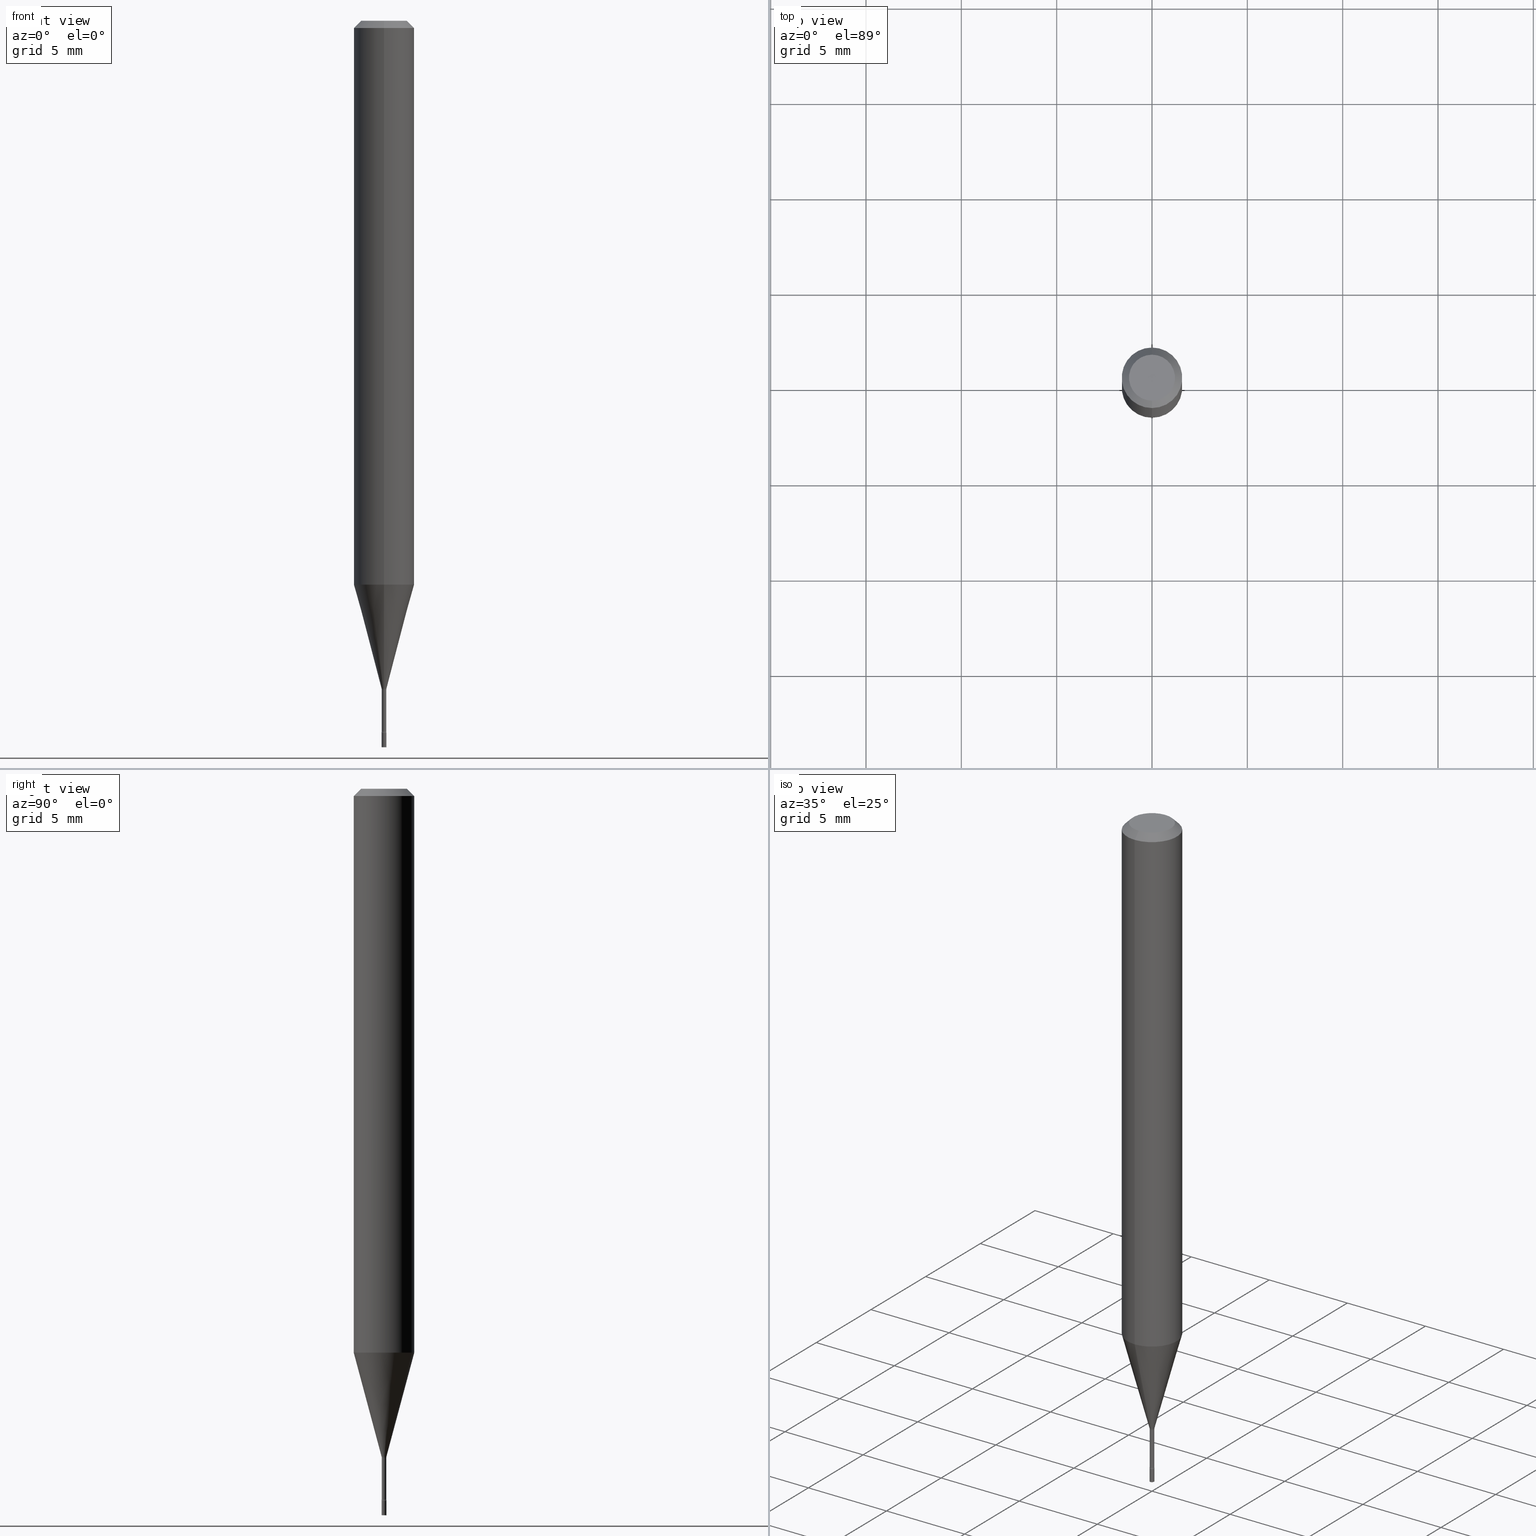
[diagram: canonical four-view strip — front | top / right | iso, engineering-drawing reading convention]
A machine part, canonical four-view strip (front | top / right | iso — engineering-drawing reading convention). The complete STEP part file that produces these views, byte-faithful:
ISO-10303-21;
HEADER;
FILE_DESCRIPTION (( 'STEP AP203' ),
    '1' );
FILE_NAME ('04294.STEP',
    '2024-03-08T22:55:13',
    ( '' ),
    ( '' ),
    'SwSTEP 2.0',
    'SolidWorks 2023',
    '' );
FILE_SCHEMA (( 'CONFIG_CONTROL_DESIGN' ));
ENDSEC;

DATA;
#1 = DIRECTION ( 'NONE',  ( -2.445468806185136597E-29, 3.491481338843145583E-15, 1.000000000000000000 ) ) ;
#2 = VERTEX_POINT ( 'NONE', #218 ) ;
#3 = FACE_OUTER_BOUND ( 'NONE', #76, .T. ) ;
#4 = VERTEX_POINT ( 'NONE', #19 ) ;
#5 = AXIS2_PLACEMENT_3D ( 'NONE', #143, #306, #470 ) ;
#6 = CARTESIAN_POINT ( 'NONE',  ( 3.665223815105752265E-31, -5.241488670295561103E-17, -0.01500000000000003067 ) ) ;
#7 = ORIENTED_EDGE ( 'NONE', *, *, #445, .F. ) ;
#8 = EDGE_CURVE ( 'NONE', #275, #40, #220, .T. ) ;
#9 = CARTESIAN_POINT ( 'NONE',  ( 3.491481338846726493E-17, 0.004999999999994865323, -1.470000000000000195 ) ) ;
#10 = VERTEX_POINT ( 'NONE', #223 ) ;
#11 = CARTESIAN_POINT ( 'NONE',  ( 2.844916092132503217E-29, -4.068399698648086919E-15, -1.164287463322519312 ) ) ;
#12 = ORIENTED_EDGE ( 'NONE', *, *, #237, .T. ) ;
#13 = CARTESIAN_POINT ( 'NONE',  ( 0.000000000000000000, 0.000000000000000000, 0.000000000000000000 ) ) ;
#14 = AXIS2_PLACEMENT_3D ( 'NONE', #513, #149, #476 ) ;
#15 = LOCAL_TIME ( 17, 55, 13.00000000000000000, #350 ) ;
#16 = EDGE_CURVE ( 'NONE', #45, #275, #93, .T. ) ;
#17 = CARTESIAN_POINT ( 'NONE',  ( 3.446132268440079019E-17, 0.004699999999994886220, -1.467015037688680357 ) ) ;
#18 = CARTESIAN_POINT ( 'NONE',  ( -4.364351673553916201E-16, -0.06250000000000000000, 2.183953612623145683E-16 ) ) ;
#19 = CARTESIAN_POINT ( 'NONE',  ( -3.638900483453789669E-17, -0.005211112605668734299, -1.378092501787273605 ) ) ;
#20 = DIRECTION ( 'NONE',  ( -6.982962677686266711E-15, -1.000000000000000000, 3.494325780197032699E-15 ) ) ;
#21 = COORDINATED_UNIVERSAL_TIME_OFFSET ( 5, 0, .BEHIND. ) ;
#22 = AXIS2_PLACEMENT_3D ( 'NONE', #362, #186, #311 ) ;
#23 = AXIS2_PLACEMENT_3D ( 'NONE', #167, #298, #372 ) ;
#24 = CARTESIAN_POINT ( 'NONE',  ( -3.281992458509167728E-17, -0.004700000000004827920, -1.381974787463811305 ) ) ;
#25 = ADVANCED_FACE ( 'NONE', ( #378 ), #262, .T. ) ;
#26 = FACE_OUTER_BOUND ( 'NONE', #371, .T. ) ;
#27 = APPROVAL_DATE_TIME ( #303, #315 ) ;
#28 = PLANE ( 'NONE',  #22 ) ;
#29 = CIRCLE ( 'NONE', #147, 0.004999999999999997502 ) ;
#30 = ORIENTED_EDGE ( 'NONE', *, *, #479, .F. ) ;
#31 = AXIS2_PLACEMENT_3D ( 'NONE', #468, #175, #386 ) ;
#32 = ADVANCED_FACE ( 'NONE', ( #425 ), #179, .F. ) ;
#33 = CARTESIAN_POINT ( 'NONE',  ( 3.668203209277704895E-29, -5.237222008264718177E-15, -1.500000000000000222 ) ) ;
#34 = ORIENTED_EDGE ( 'NONE', *, *, #445, .T. ) ;
#35 = SHAPE_DEFINITION_REPRESENTATION ( #383, #508 ) ;
#36 = DIRECTION ( 'NONE',  ( 1.000000000000000000, -6.982962677686336130E-15, 0.000000000000000000 ) ) ;
#37 = ORIENTED_EDGE ( 'NONE', *, *, #137, .T. ) ;
#38 = CARTESIAN_POINT ( 'NONE',  ( 4.440892098500912124E-16, 0.06249999999999995143, -0.01500000000000024751 ) ) ;
#39 = ADVANCED_FACE ( 'NONE', ( #26 ), #431, .F. ) ;
#40 = VERTEX_POINT ( 'NONE', #24 ) ;
#41 = AXIS2_PLACEMENT_3D ( 'NONE', #270, #230, #121 ) ;
#42 = APPROVAL_PERSON_ORGANIZATION ( #58, #498, #185 ) ;
#43 = LOCAL_TIME ( 17, 55, 13.00000000000000000, #507 ) ;
#44 = FACE_OUTER_BOUND ( 'NONE', #335, .T. ) ;
#45 = VERTEX_POINT ( 'NONE', #17 ) ;
#46 = DIRECTION ( 'NONE',  ( -1.000000000000000000, 6.982962677686265922E-15, -4.883557194083112340E-29 ) ) ;
#47 = ORIENTED_EDGE ( 'NONE', *, *, #459, .F. ) ;
#48 = EDGE_CURVE ( 'NONE', #122, #2, #487, .T. ) ;
#49 = DIRECTION ( 'NONE',  ( -6.982962677686266711E-15, -1.000000000000000000, 0.000000000000000000 ) ) ;
#50 = CARTESIAN_POINT ( 'NONE',  ( 4.364351673553919652E-16, 0.06249999999999995143, -0.01500000000000024751 ) ) ;
#51 = DIRECTION ( 'NONE',  ( -6.982962677686265133E-15, -1.000000000000000000, 0.000000000000000000 ) ) ;
#52 = CC_DESIGN_PERSON_AND_ORGANIZATION_ASSIGNMENT ( #446, #242, ( #448 ) ) ;
#53 = FACE_OUTER_BOUND ( 'NONE', #235, .T. ) ;
#54 = PLANE ( 'NONE',  #514 ) ;
#55 = APPLICATION_PROTOCOL_DEFINITION ( 'international standard', 'config_control_design', 1994, #408 ) ;
#56 = LINE ( 'NONE', #50, #520 ) ;
#57 = EDGE_CURVE ( 'NONE', #10, #442, #103, .T. ) ;
#58 = PERSON_AND_ORGANIZATION ( #72, #388 ) ;
#59 = CIRCLE ( 'NONE', #172, 0.005000000000000001839 ) ;
#60 = DIRECTION ( 'NONE',  ( -6.982962677686266711E-15, -1.000000000000000000, 0.000000000000000000 ) ) ;
#61 = PERSON_AND_ORGANIZATION ( #72, #388 ) ;
#62 = CC_DESIGN_PERSON_AND_ORGANIZATION_ASSIGNMENT ( #345, #64, ( #229 ) ) ;
#63 = DIRECTION ( 'NONE',  ( -6.982962677686265922E-15, -1.000000000000000000, 3.494325780197033093E-15 ) ) ;
#64 = PERSON_AND_ORGANIZATION_ROLE ( 'creator' ) ;
#65 = DIRECTION ( 'NONE',  ( 1.000000000000000000, -6.982962677686336130E-15, 0.000000000000000000 ) ) ;
#66 = DIRECTION ( 'NONE',  ( -6.982962677686265922E-15, -1.000000000000000000, 3.494325780197033093E-15 ) ) ;
#67 = AXIS2_PLACEMENT_3D ( 'NONE', #144, #337, #462 ) ;
#68 = APPROVAL_PERSON_ORGANIZATION ( #322, #348, #451 ) ;
#69 = COORDINATED_UNIVERSAL_TIME_OFFSET ( 5, 0, .BEHIND. ) ;
#70 = DESIGN_CONTEXT ( 'detailed design', #326, 'design' ) ;
#71 = ORIENTED_EDGE ( 'NONE', *, *, #384, .T. ) ;
#72 = PERSON ( 'UNSPECIFIED', 'UNSPECIFIED', 'UNSPECIFIED', ('UNSPECIFIED'), ('UNSPECIFIED'), ('UNSPECIFIED') ) ;
#73 = ORIENTED_EDGE ( 'NONE', *, *, #250, .T. ) ;
#74 = ADVANCED_FACE ( 'NONE', ( #53 ), #191, .T. ) ;
#75 = CARTESIAN_POINT ( 'NONE',  ( 1.399769189447756949E-16, 0.01969999999999489174, -1.467015037688680357 ) ) ;
#76 = EDGE_LOOP ( 'NONE', ( #168, #12, #83, #313 ) ) ;
#77 = VECTOR ( 'NONE', #198, 39.37007874015748143 ) ;
#78 = CALENDAR_DATE ( 2024, 8, 3 ) ;
#79 = DIRECTION ( 'NONE',  ( -2.445468806185136877E-29, 3.491481338843145188E-15, 1.000000000000000000 ) ) ;
#80 = ORIENTED_EDGE ( 'NONE', *, *, #290, .F. ) ;
#81 = APPROVAL_DATE_TIME ( #478, #348 ) ;
#82 = LINE ( 'NONE', #482, #504 ) ;
#83 = ORIENTED_EDGE ( 'NONE', *, *, #399, .F. ) ;
#84 = DIRECTION ( 'NONE',  ( -6.982962677686265922E-15, -1.000000000000000000, 0.000000000000000000 ) ) ;
#85 = ORIENTED_EDGE ( 'NONE', *, *, #16, .F. ) ;
#86 = AXIS2_PLACEMENT_3D ( 'NONE', #101, #265, #60 ) ;
#87 = CARTESIAN_POINT ( 'NONE',  ( 1.399769189447734763E-16, 0.01969999999999517276, -1.381974787463811305 ) ) ;
#88 = EDGE_LOOP ( 'NONE', ( #241, #201, #494, #500 ) ) ;
#89 = DIRECTION ( 'NONE',  ( -2.443482543403829974E-29, 3.494325780197033093E-15, 1.000000000000000000 ) ) ;
#90 = FACE_OUTER_BOUND ( 'NONE', #489, .T. ) ;
#91 = CYLINDRICAL_SURFACE ( 'NONE', #325, 0.004999999999999997502 ) ;
#92 = ORIENTED_EDGE ( 'NONE', *, *, #237, .F. ) ;
#93 = CIRCLE ( 'NONE', #396, 0.004700000000000012328 ) ;
#94 = DIRECTION ( 'NONE',  ( -2.443482543403829974E-29, 3.494325780197033093E-15, 1.000000000000000000 ) ) ;
#95 = CONICAL_SURFACE ( 'NONE', #14, 0.005211112605663917839, 0.2617993877991496299 ) ;
#96 = DIRECTION ( 'NONE',  ( -2.443482543403829974E-29, 3.494325780197033487E-15, 1.000000000000000000 ) ) ;
#97 = DIRECTION ( 'NONE',  ( -2.443482543403829974E-29, 3.494325780197033093E-15, 1.000000000000000000 ) ) ;
#98 = ADVANCED_FACE ( 'NONE', ( #90 ), #257, .F. ) ;
#99 = DIRECTION ( 'NONE',  ( -2.443482543403829974E-29, 3.494325780197033093E-15, 1.000000000000000000 ) ) ;
#100 = CARTESIAN_POINT ( 'NONE',  ( -4.287811248607203282E-16, -0.06250000000000005551, -0.01499999999999981209 ) ) ;
#101 = CARTESIAN_POINT ( 'NONE',  ( 3.591919338803630345E-29, -5.136658896889640106E-15, -1.470000000000000195 ) ) ;
#102 = CARTESIAN_POINT ( 'NONE',  ( 0.000000000000000000, 0.000000000000000000, 0.000000000000000000 ) ) ;
#103 = CIRCLE ( 'NONE', #67, 0.004999999999999997502 ) ;
#104 = DIRECTION ( 'NONE',  ( -6.982962677686266711E-15, -1.000000000000000000, 0.000000000000000000 ) ) ;
#105 = EDGE_CURVE ( 'NONE', #502, #40, #334, .T. ) ;
#106 = CALENDAR_DATE ( 2024, 8, 3 ) ;
#107 = CARTESIAN_POINT ( 'NONE',  ( -4.364351673553632704E-16, -0.06250000000000409395, -1.164287463322519089 ) ) ;
#108 = AXIS2_PLACEMENT_3D ( 'NONE', #471, #161, #104 ) ;
#109 = LOCAL_TIME ( 17, 55, 13.00000000000000000, #400 ) ;
#110 = ORIENTED_EDGE ( 'NONE', *, *, #392, .F. ) ;
#111 = EDGE_CURVE ( 'NONE', #363, #357, #59, .T. ) ;
#112 = ORIENTED_EDGE ( 'NONE', *, *, #305, .T. ) ;
#113 = DATE_AND_TIME ( #78, #213 ) ;
#114 = CARTESIAN_POINT ( 'NONE',  ( -3.281992458508968664E-17, -0.004700000000005138436, -1.467015037688680357 ) ) ;
#115 = EDGE_LOOP ( 'NONE', ( #323, #394, #34, #356 ) ) ;
#116 = CARTESIAN_POINT ( 'NONE',  ( 3.584558826531419241E-29, -5.126324140382401988E-15, -1.467015037688680357 ) ) ;
#117 = VECTOR ( 'NONE', #96, 39.37007874015748143 ) ;
#118 = ORIENTED_EDGE ( 'NONE', *, *, #338, .F. ) ;
#119 = AXIS2_PLACEMENT_3D ( 'NONE', #490, #253, #84 ) ;
#120 = EDGE_CURVE ( 'NONE', #122, #199, #56, .T. ) ;
#121 = DIRECTION ( 'NONE',  ( -6.982962677686265133E-15, -1.000000000000000000, 0.000000000000000000 ) ) ;
#122 = VERTEX_POINT ( 'NONE', #346 ) ;
#123 = DIRECTION ( 'NONE',  ( -6.982962677686265133E-15, -1.000000000000000000, 3.494325780197033093E-15 ) ) ;
#124 = CC_DESIGN_PERSON_AND_ORGANIZATION_ASSIGNMENT ( #314, #280, ( #515 ) ) ;
#125 = VERTEX_POINT ( 'NONE', #509 ) ;
#126 = DIRECTION ( 'NONE',  ( -6.982962677686266711E-15, -1.000000000000000000, 3.494325780197032699E-15 ) ) ;
#127 = ORIENTED_EDGE ( 'NONE', *, *, #105, .F. ) ;
#128 = CIRCLE ( 'NONE', #317, 0.004999999999999997502 ) ;
#129 = AXIS2_PLACEMENT_3D ( 'NONE', #102, #263, #268 ) ;
#130 = CARTESIAN_POINT ( 'NONE',  ( 7.032049533106805052E-46, -1.005625026357988639E-31, -2.877879996355934368E-17 ) ) ;
#131 = EDGE_CURVE ( 'NONE', #4, #484, #367, .T. ) ;
#132 = ORIENTED_EDGE ( 'NONE', *, *, #131, .F. ) ;
#133 = DIRECTION ( 'NONE',  ( 1.000000000000000000, -6.982962677686265922E-15, 4.876176775795935793E-29 ) ) ;
#134 = DIRECTION ( 'NONE',  ( -6.982962677686265922E-15, -1.000000000000000000, 0.000000000000000000 ) ) ;
#135 = DIRECTION ( 'NONE',  ( -2.445468806185136597E-29, 3.491481338843145583E-15, 1.000000000000000000 ) ) ;
#136 = CARTESIAN_POINT ( 'NONE',  ( 3.376595547336323602E-29, -4.829407693671720088E-15, -1.381974787463811305 ) ) ;
#137 = EDGE_CURVE ( 'NONE', #357, #363, #358, .T. ) ;
#138 = DIRECTION ( 'NONE',  ( 2.443482543403829974E-29, -3.494325780197033093E-15, -1.000000000000000000 ) ) ;
#139 = CIRCLE ( 'NONE', #273, 0.004999999999999997502 ) ;
#140 = AXIS2_PLACEMENT_3D ( 'NONE', #300, #46, #51 ) ;
#141 = DIRECTION ( 'NONE',  ( -2.443482543403829974E-29, 3.494325780197033093E-15, 1.000000000000000000 ) ) ;
#142 = DATE_AND_TIME ( #106, #203 ) ;
#143 = CARTESIAN_POINT ( 'NONE',  ( 3.367344971312914861E-29, -4.815504156491496449E-15, -1.378092501787273605 ) ) ;
#144 = CARTESIAN_POINT ( 'NONE',  ( 3.594839145092150820E-29, -5.132477568099424807E-15, -1.470000000000000195 ) ) ;
#145 = DIRECTION ( 'NONE',  ( -4.851104656540963486E-15, -0.7071067811865499042, -0.7071067811865450192 ) ) ;
#146 = CLOSED_SHELL ( 'NONE', ( #375, #344, #359, #266 ) ) ;
#147 = AXIS2_PLACEMENT_3D ( 'NONE', #404, #1, #36 ) ;
#148 = AXIS2_PLACEMENT_3D ( 'NONE', #9, #457, #417 ) ;
#149 = DIRECTION ( 'NONE',  ( -2.443482543403829974E-29, 3.494325780197033093E-15, 1.000000000000000000 ) ) ;
#150 = CARTESIAN_POINT ( 'NONE',  ( 3.339550858076058473E-17, 0.004699999999995169847, -1.381974787463811305 ) ) ;
#151 = CARTESIAN_POINT ( 'NONE',  ( -3.638900483453789669E-17, -0.005211112605668734299, -1.378092501787273605 ) ) ;
#152 = ORIENTED_EDGE ( 'NONE', *, *, #215, .F. ) ;
#153 = CALENDAR_DATE ( 2024, 8, 3 ) ;
#154 = EDGE_LOOP ( 'NONE', ( #316, #497, #196, #373 ) ) ;
#155 = EDGE_CURVE ( 'NONE', #125, #10, #188, .T. ) ;
#156 = AXIS2_PLACEMENT_3D ( 'NONE', #511, #427, #20 ) ;
#157 = CC_DESIGN_APPROVAL ( #348, ( #448 ) ) ;
#158 = VERTEX_POINT ( 'NONE', #282 ) ;
#159 = FACE_OUTER_BOUND ( 'NONE', #288, .T. ) ;
#160 = EDGE_LOOP ( 'NONE', ( #118, #450, #285, #390 ) ) ;
#161 = DIRECTION ( 'NONE',  ( -2.443482543403829974E-29, 3.494325780197033093E-15, 1.000000000000000000 ) ) ;
#162 = ORIENTED_EDGE ( 'NONE', *, *, #234, .T. ) ;
#163 = AXIS2_PLACEMENT_3D ( 'NONE', #463, #135, #495 ) ;
#164 = AXIS2_PLACEMENT_3D ( 'NONE', #13, #174, #336 ) ;
#165 = DIRECTION ( 'NONE',  ( -2.443482543403829974E-29, 3.494325780197033093E-15, 1.000000000000000000 ) ) ;
#166 = ORIENTED_EDGE ( 'NONE', *, *, #137, .F. ) ;
#167 = CARTESIAN_POINT ( 'NONE',  ( 2.844916092132503217E-29, -4.068399698648086919E-15, -1.164287463322519312 ) ) ;
#168 = ORIENTED_EDGE ( 'NONE', *, *, #410, .T. ) ;
#169 = CARTESIAN_POINT ( 'NONE',  ( 3.552713678804093402E-17, 0.004999999999994865323, -1.470000000000000195 ) ) ;
#170 = EDGE_CURVE ( 'NONE', #368, #442, #194, .T. ) ;
#171 = ORIENTED_EDGE ( 'NONE', *, *, #57, .T. ) ;
#172 = AXIS2_PLACEMENT_3D ( 'NONE', #304, #264, #428 ) ;
#173 = CIRCLE ( 'NONE', #274, 0.01500000000000001853 ) ;
#174 = DIRECTION ( 'NONE',  ( -2.443482543403829974E-29, 3.494325780197033093E-15, 1.000000000000000000 ) ) ;
#175 = DIRECTION ( 'NONE',  ( -2.443482543403829974E-29, 3.494325780197033093E-15, 1.000000000000000000 ) ) ;
#176 = CARTESIAN_POINT ( 'NONE',  ( 3.594839145092150820E-29, -5.132477568099424807E-15, -1.470000000000000195 ) ) ;
#177 = DIRECTION ( 'NONE',  ( 2.443482543403829974E-29, -3.494325780197033093E-15, -1.000000000000000000 ) ) ;
#178 = CARTESIAN_POINT ( 'NONE',  ( 3.376831268592040714E-29, -4.829070127417111793E-15, -1.381974787463811305 ) ) ;
#179 = TOROIDAL_SURFACE ( 'NONE', #221, 0.01970000000000000223, 0.01500000000000001679 ) ;
#180 = LINE ( 'NONE', #100, #252 ) ;
#181 = CIRCLE ( 'NONE', #140, 0.01500000000000001853 ) ;
#182 = DIRECTION ( 'NONE',  ( 4.937700262164547253E-15, 0.7071067811865450192, -0.7071067811865499042 ) ) ;
#183 = CARTESIAN_POINT ( 'NONE',  ( 3.665223815105752265E-31, -5.241488670295561103E-17, -0.01500000000000003067 ) ) ;
#184 = DIRECTION ( 'NONE',  ( -6.982962677686266711E-15, -1.000000000000000000, 3.494325780197033093E-15 ) ) ;
#185 = APPROVAL_ROLE ( '' ) ;
#186 = DIRECTION ( 'NONE',  ( 2.438088387897960049E-29, -3.491481338843145188E-15, -1.000000000000000000 ) ) ;
#187 = FACE_OUTER_BOUND ( 'NONE', #416, .T. ) ;
#188 = LINE ( 'NONE', #246, #77 ) ;
#189 = EDGE_CURVE ( 'NONE', #4, #190, #269, .T. ) ;
#190 = VERTEX_POINT ( 'NONE', #107 ) ;
#191 = CONICAL_SURFACE ( 'NONE', #302, 0.06250000000000000000, 0.7853981633974482790 ) ;
#192 = APPROVAL_PERSON_ORGANIZATION ( #341, #315, #503 ) ;
#193 = APPROVAL_STATUS ( 'not_yet_approved' ) ;
#194 = LINE ( 'NONE', #488, #308 ) ;
#195 = EDGE_CURVE ( 'NONE', #368, #125, #128, .T. ) ;
#196 = ORIENTED_EDGE ( 'NONE', *, *, #441, .F. ) ;
#197 = SECURITY_CLASSIFICATION_LEVEL ( 'unclassified' ) ;
#198 = DIRECTION ( 'NONE',  ( -2.445468806185136877E-29, 3.491481338843145188E-15, 1.000000000000000000 ) ) ;
#199 = VERTEX_POINT ( 'NONE', #38 ) ;
#200 = DIRECTION ( 'NONE',  ( -1.807323732225325801E-15, -0.2588190451025175753, 0.9659258262890690894 ) ) ;
#201 = ORIENTED_EDGE ( 'NONE', *, *, #155, .T. ) ;
#202 = AXIS2_PLACEMENT_3D ( 'NONE', #130, #165, #126 ) ;
#203 = LOCAL_TIME ( 17, 55, 13.00000000000000000, #21 ) ;
#204 = CARTESIAN_POINT ( 'NONE',  ( 0.004999999999999997502, -5.272136821653149826E-15, -1.500000000000000222 ) ) ;
#205 = ORIENTED_EDGE ( 'NONE', *, *, #410, .F. ) ;
#206 = EDGE_CURVE ( 'NONE', #125, #368, #139, .T. ) ;
#207 = FACE_OUTER_BOUND ( 'NONE', #455, .T. ) ;
#208 = EDGE_LOOP ( 'NONE', ( #365, #464, #443, #293 ) ) ;
#209 = DIRECTION ( 'NONE',  ( 1.000000000000000000, -7.105427357601001070E-15, 4.926350342902076101E-29 ) ) ;
#210 = MANIFOLD_SOLID_BREP ( 'Body-Move/Copy2[2]', #456 ) ;
#211 = CARTESIAN_POINT ( 'NONE',  ( 3.584625635503202420E-29, -5.126228466132278836E-15, -1.467015037688680357 ) ) ;
#212 = VECTOR ( 'NONE', #426, 39.37007874015748143 ) ;
#213 = LOCAL_TIME ( 17, 55, 13.00000000000000000, #69 ) ;
#214 = FACE_OUTER_BOUND ( 'NONE', #413, .T. ) ;
#215 = EDGE_CURVE ( 'NONE', #275, #363, #267, .T. ) ;
#216 = DIRECTION ( 'NONE',  ( 6.982962677686265922E-15, 1.000000000000000000, -3.483106191921935554E-15 ) ) ;
#217 = FACE_OUTER_BOUND ( 'NONE', #278, .T. ) ;
#218 = CARTESIAN_POINT ( 'NONE',  ( -3.773273898774340269E-16, -0.04749999999999999362, 1.372016745957997122E-16 ) ) ;
#219 = MECHANICAL_CONTEXT ( 'NONE', #408, 'mechanical' ) ;
#220 = LINE ( 'NONE', #299, #117 ) ;
#221 = AXIS2_PLACEMENT_3D ( 'NONE', #136, #141, #184 ) ;
#222 = APPROVAL_STATUS ( 'not_yet_approved' ) ;
#223 = CARTESIAN_POINT ( 'NONE',  ( -0.004999999999999997502, -5.149322651394067240E-15, -1.470000000000000195 ) ) ;
#224 = ADVANCED_FACE ( 'NONE', ( #3 ), #366, .T. ) ;
#225 = APPLICATION_PROTOCOL_DEFINITION ( 'international standard', 'config_control_design', 1994, #326 ) ;
#226 = DIRECTION ( 'NONE',  ( 1.000000000000000000, -6.982962677686336130E-15, 0.000000000000000000 ) ) ;
#227 = FACE_OUTER_BOUND ( 'NONE', #115, .T. ) ;
#228 = PRODUCT ( '04294', '04294', '', ( #219 ) ) ;
#229 = PRODUCT_DEFINITION ( 'UNKNOWN', '', #515, #70 ) ;
#230 = DIRECTION ( 'NONE',  ( -1.000000000000000000, 6.982962677686265922E-15, -4.883557194083112340E-29 ) ) ;
#231 = CARTESIAN_POINT ( 'NONE',  ( 0.000000000000000000, 0.000000000000000000, 0.000000000000000000 ) ) ;
#232 = CIRCLE ( 'NONE', #379, 0.06250000000000000000 ) ;
#233 = CIRCLE ( 'NONE', #23, 0.06250000000000000000 ) ;
#234 = EDGE_CURVE ( 'NONE', #199, #158, #496, .T. ) ;
#235 = EDGE_LOOP ( 'NONE', ( #491, #361, #319, #162 ) ) ;
#236 = EDGE_LOOP ( 'NONE', ( #47, #132, #276, #486 ) ) ;
#237 = EDGE_CURVE ( 'NONE', #45, #502, #82, .T. ) ;
#238 = DIRECTION ( 'NONE',  ( 1.000000000000000000, -7.105427357601001070E-15, 4.926350342902076101E-29 ) ) ;
#239 = TOROIDAL_SURFACE ( 'NONE', #283, 0.01970000000000000223, 0.01500000000000001679 ) ;
#240 = CC_DESIGN_APPROVAL ( #315, ( #229 ) ) ;
#241 = ORIENTED_EDGE ( 'NONE', *, *, #195, .T. ) ;
#242 = PERSON_AND_ORGANIZATION_ROLE ( 'classification_officer' ) ;
#243 = FACE_OUTER_BOUND ( 'NONE', #154, .T. ) ;
#244 = ORIENTED_EDGE ( 'NONE', *, *, #48, .T. ) ;
#245 = DIMENSIONAL_EXPONENTS ( 1.000000000000000000, 0.000000000000000000, 0.000000000000000000, 0.000000000000000000, 0.000000000000000000, 0.000000000000000000, 0.000000000000000000 ) ;
#246 = CARTESIAN_POINT ( 'NONE',  ( -0.004999999999999997502, 3.552713678800499154E-17, -2.459467545127451822E-31 ) ) ;
#247 = EDGE_LOOP ( 'NONE', ( #398, #171 ) ) ;
#248 = FACE_OUTER_BOUND ( 'NONE', #88, .T. ) ;
#249 = VECTOR ( 'NONE', #444, 39.37007874015748143 ) ;
#250 = EDGE_CURVE ( 'NONE', #484, #4, #480, .T. ) ;
#251 = ORIENTED_EDGE ( 'NONE', *, *, #441, .T. ) ;
#252 = VECTOR ( 'NONE', #145, 39.37007874015748854 ) ;
#253 = DIRECTION ( 'NONE',  ( -2.443482543403829974E-29, 3.494325780197033093E-15, 1.000000000000000000 ) ) ;
#254 = EDGE_LOOP ( 'NONE', ( #327, #460 ) ) ;
#255 = CC_DESIGN_DATE_AND_TIME_ASSIGNMENT ( #113, #407, ( #448 ) ) ;
#256 = CARTESIAN_POINT ( 'NONE',  ( 0.004999999999999997502, -5.167392381487856456E-15, -1.470000000000000195 ) ) ;
#257 = PLANE ( 'NONE',  #272 ) ;
#258 = CARTESIAN_POINT ( 'NONE',  ( 0.000000000000000000, 0.000000000000000000, 0.000000000000000000 ) ) ;
#259 = DIRECTION ( 'NONE',  ( -2.443482543403829974E-29, 3.494325780197033093E-15, 1.000000000000000000 ) ) ;
#260 = TOROIDAL_SURFACE ( 'NONE', #447, 0.01970000000000001958, 0.01500000000000000638 ) ;
#261 = CARTESIAN_POINT ( 'NONE',  ( 3.367344971312914861E-29, -4.815504156491496449E-15, -1.378092501787273605 ) ) ;
#262 = CYLINDRICAL_SURFACE ( 'NONE', #402, 0.06250000000000000000 ) ;
#263 = DIRECTION ( 'NONE',  ( 0.000000000000000000, 0.000000000000000000, 1.000000000000000000 ) ) ;
#264 = DIRECTION ( 'NONE',  ( -2.443482543403829974E-29, 3.494325780197033093E-15, 1.000000000000000000 ) ) ;
#265 = DIRECTION ( 'NONE',  ( -2.443482543403829974E-29, 3.494325780197033093E-15, 1.000000000000000000 ) ) ;
#266 = ADVANCED_FACE ( 'NONE', ( #393 ), #28, .T. ) ;
#267 = CIRCLE ( 'NONE', #41, 0.01500000000000000638 ) ;
#268 = DIRECTION ( 'NONE',  ( 1.000000000000000000, 0.000000000000000000, 0.000000000000000000 ) ) ;
#269 = LINE ( 'NONE', #151, #472 ) ;
#270 = CARTESIAN_POINT ( 'NONE',  ( -1.375643647503837156E-16, -0.01970000000000514395, -1.467015037688680357 ) ) ;
#271 = ORIENTED_EDGE ( 'NONE', *, *, #338, .T. ) ;
#272 = AXIS2_PLACEMENT_3D ( 'NONE', #342, #430, #381 ) ;
#273 = AXIS2_PLACEMENT_3D ( 'NONE', #33, #436, #65 ) ;
#274 = AXIS2_PLACEMENT_3D ( 'NONE', #87, #209, #492 ) ;
#275 = VERTEX_POINT ( 'NONE', #114 ) ;
#276 = ORIENTED_EDGE ( 'NONE', *, *, #419, .T. ) ;
#277 = CARTESIAN_POINT ( 'NONE',  ( 3.702718207185751166E-17, 0.005211112605659102247, -1.378092501787273605 ) ) ;
#278 = EDGE_LOOP ( 'NONE', ( #80, #73, #505, #110 ) ) ;
#279 = ADVANCED_FACE ( 'NONE', ( #395 ), #239, .F. ) ;
#280 = PERSON_AND_ORGANIZATION_ROLE ( 'design_supplier' ) ;
#281 = CC_DESIGN_PERSON_AND_ORGANIZATION_ASSIGNMENT ( #61, #438, ( #228 ) ) ;
#282 = CARTESIAN_POINT ( 'NONE',  ( -4.364351673553912750E-16, -0.06250000000000005551, -0.01499999999999981209 ) ) ;
#283 = AXIS2_PLACEMENT_3D ( 'NONE', #517, #286, #452 ) ;
#284 = CONICAL_SURFACE ( 'NONE', #343, 0.06250000000000000000, 0.7853981633974482790 ) ;
#285 = ORIENTED_EDGE ( 'NONE', *, *, #479, .T. ) ;
#286 = DIRECTION ( 'NONE',  ( -2.443482543403829974E-29, 3.494325780197033093E-15, 1.000000000000000000 ) ) ;
#287 = UNCERTAINTY_MEASURE_WITH_UNIT (LENGTH_MEASURE( 1.000000000000000082E-05 ), #477, 'distance_accuracy_value', 'NONE');
#288 = EDGE_LOOP ( 'NONE', ( #85, #112, #37, #152 ) ) ;
#289 = CARTESIAN_POINT ( 'NONE',  ( 4.440892098500625669E-16, 0.06250000000000000000, -2.183953612623145683E-16 ) ) ;
#290 = EDGE_CURVE ( 'NONE', #484, #406, #352, .T. ) ;
#291 = ORIENTED_EDGE ( 'NONE', *, *, #155, .F. ) ;
#292 = DIRECTION ( 'NONE',  ( -6.982962677686265922E-15, -1.000000000000000000, 0.000000000000000000 ) ) ;
#293 = ORIENTED_EDGE ( 'NONE', *, *, #419, .F. ) ;
#294 = CIRCLE ( 'NONE', #119, 0.004699999999999999317 ) ;
#295 = CARTESIAN_POINT ( 'NONE',  ( -3.491481338839543545E-17, -0.005000000000005140090, -1.470000000000000195 ) ) ;
#296 = ORIENTED_EDGE ( 'NONE', *, *, #215, .T. ) ;
#297 = ADVANCED_FACE ( 'NONE', ( #243 ), #95, .T. ) ;
#298 = DIRECTION ( 'NONE',  ( -2.443482543403829974E-29, 3.494325780197033093E-15, 1.000000000000000000 ) ) ;
#299 = CARTESIAN_POINT ( 'NONE',  ( -3.281992458512549353E-17, -0.004700000000000006256, 1.642333116692607654E-17 ) ) ;
#300 = CARTESIAN_POINT ( 'NONE',  ( -1.375643647503856878E-16, -0.01970000000000482823, -1.381974787463811305 ) ) ;
#301 = DIRECTION ( 'NONE',  ( -2.443482543403829974E-29, 3.494325780197033093E-15, 1.000000000000000000 ) ) ;
#302 = AXIS2_PLACEMENT_3D ( 'NONE', #467, #177, #216 ) ;
#303 = DATE_AND_TIME ( #385, #43 ) ;
#304 = CARTESIAN_POINT ( 'NONE',  ( 3.591919338803630345E-29, -5.136658896889640106E-15, -1.470000000000000195 ) ) ;
#305 = EDGE_CURVE ( 'NONE', #45, #357, #377, .T. ) ;
#306 = DIRECTION ( 'NONE',  ( -2.443482543403829974E-29, 3.494325780197033093E-15, 1.000000000000000000 ) ) ;
#307 = DIRECTION ( 'NONE',  ( -6.982962677686265922E-15, -1.000000000000000000, 3.483106191921935554E-15 ) ) ;
#308 = VECTOR ( 'NONE', #79, 39.37007874015748143 ) ;
#309 = DATE_AND_TIME ( #512, #15 ) ;
#310 = CC_DESIGN_SECURITY_CLASSIFICATION ( #448, ( #515 ) ) ;
#311 = DIRECTION ( 'NONE',  ( -1.000000000000000000, 6.982962677686265922E-15, -4.876176775795935793E-29 ) ) ;
#312 =( LENGTH_UNIT ( ) NAMED_UNIT ( * ) SI_UNIT ( $, .METRE. ) );
#313 = ORIENTED_EDGE ( 'NONE', *, *, #8, .F. ) ;
#314 = PERSON_AND_ORGANIZATION ( #72, #388 ) ;
#315 = APPROVAL ( #391, 'UNSPECIFIED' ) ;
#316 = ORIENTED_EDGE ( 'NONE', *, *, #131, .T. ) ;
#317 = AXIS2_PLACEMENT_3D ( 'NONE', #434, #320, #226 ) ;
#318 = AXIS2_PLACEMENT_3D ( 'NONE', #331, #420, #422 ) ;
#319 = ORIENTED_EDGE ( 'NONE', *, *, #120, .T. ) ;
#320 = DIRECTION ( 'NONE',  ( -2.445468806185136597E-29, 3.491481338843145583E-15, 1.000000000000000000 ) ) ;
#321 = EDGE_CURVE ( 'NONE', #442, #10, #29, .T. ) ;
#322 = PERSON_AND_ORGANIZATION ( #72, #388 ) ;
#323 = ORIENTED_EDGE ( 'NONE', *, *, #384, .F. ) ;
#324 = DIRECTION ( 'NONE',  ( -2.443482543403829974E-29, 3.494325780197033093E-15, 1.000000000000000000 ) ) ;
#325 = AXIS2_PLACEMENT_3D ( 'NONE', #258, #501, #382 ) ;
#326 = APPLICATION_CONTEXT ( 'configuration controlled 3d designs of mechanical parts and assemblies' ) ;
#327 = ORIENTED_EDGE ( 'NONE', *, *, #195, .F. ) ;
#328 = ADVANCED_FACE ( 'NONE', ( #159 ), #260, .F. ) ;
#329 = DIRECTION ( 'NONE',  ( -6.982962677686265922E-15, -1.000000000000000000, 4.370956789862821150E-15 ) ) ;
#330 = ORIENTED_EDGE ( 'NONE', *, *, #8, .T. ) ;
#331 = CARTESIAN_POINT ( 'NONE',  ( 3.665223815105752265E-31, -5.241488670295561103E-17, -0.01500000000000003067 ) ) ;
#332 = ORIENTED_EDGE ( 'NONE', *, *, #111, .T. ) ;
#333 = CYLINDRICAL_SURFACE ( 'NONE', #163, 0.004999999999999997502 ) ;
#334 = CIRCLE ( 'NONE', #387, 0.004699999999999999317 ) ;
#335 = EDGE_LOOP ( 'NONE', ( #291, #418, #519, #453 ) ) ;
#336 = DIRECTION ( 'NONE',  ( -6.982962677686265922E-15, -1.000000000000000000, 3.494325780197033093E-15 ) ) ;
#337 = DIRECTION ( 'NONE',  ( -2.445468806185136597E-29, 3.491481338843145583E-15, 1.000000000000000000 ) ) ;
#338 = EDGE_CURVE ( 'NONE', #406, #199, #485, .T. ) ;
#339 = DIRECTION ( 'NONE',  ( -2.443482543403829974E-29, 3.494325780197033487E-15, 1.000000000000000000 ) ) ;
#340 = DIRECTION ( 'NONE',  ( -6.982962677686265922E-15, -1.000000000000000000, 0.000000000000000000 ) ) ;
#341 = PERSON_AND_ORGANIZATION ( #72, #388 ) ;
#342 = CARTESIAN_POINT ( 'NONE',  ( 3.316907271900976096E-16, 0.04749999999999999362, -1.803698745411387246E-16 ) ) ;
#343 = AXIS2_PLACEMENT_3D ( 'NONE', #183, #138, #516 ) ;
#344 = ADVANCED_FACE ( 'NONE', ( #465 ), #54, .T. ) ;
#345 = PERSON_AND_ORGANIZATION ( #72, #388 ) ;
#346 = CARTESIAN_POINT ( 'NONE',  ( 3.840629472727447874E-16, 0.04749999999999999362, -1.947592745229183872E-16 ) ) ;
#347 =( NAMED_UNIT ( * ) PLANE_ANGLE_UNIT ( ) SI_UNIT ( $, .RADIAN. ) );
#348 = APPROVAL ( #193, 'UNSPECIFIED' ) ;
#349 = DIRECTION ( 'NONE',  ( -6.982962677686265922E-15, -1.000000000000000000, 3.494325780197033093E-15 ) ) ;
#350 = COORDINATED_UNIVERSAL_TIME_OFFSET ( 5, 0, .BEHIND. ) ;
#351 = ADVANCED_FACE ( 'NONE', ( #217 ), #415, .T. ) ;
#352 = LINE ( 'NONE', #277, #249 ) ;
#353 = AXIS2_PLACEMENT_3D ( 'NONE', #261, #94, #49 ) ;
#354 = CYLINDRICAL_SURFACE ( 'NONE', #474, 0.06250000000000000000 ) ;
#355 = DIRECTION ( 'NONE',  ( -2.443482543403829974E-29, 3.494325780197033093E-15, 1.000000000000000000 ) ) ;
#356 = ORIENTED_EDGE ( 'NONE', *, *, #120, .F. ) ;
#357 = VERTEX_POINT ( 'NONE', #169 ) ;
#358 = CIRCLE ( 'NONE', #86, 0.005000000000000001839 ) ;
#359 = ADVANCED_FACE ( 'NONE', ( #44 ), #91, .T. ) ;
#360 =( GEOMETRIC_REPRESENTATION_CONTEXT ( 3 ) GLOBAL_UNCERTAINTY_ASSIGNED_CONTEXT ( ( #287 ) ) GLOBAL_UNIT_ASSIGNED_CONTEXT ( ( #477, #347, #429 ) ) REPRESENTATION_CONTEXT ( 'NONE', 'WORKASPACE' ) );
#361 = ORIENTED_EDGE ( 'NONE', *, *, #48, .F. ) ;
#362 = CARTESIAN_POINT ( 'NONE',  ( 3.491481338846799833E-17, 0.004999999999994760372, -1.500000000000000222 ) ) ;
#363 = VERTEX_POINT ( 'NONE', #295 ) ;
#364 = DIRECTION ( 'NONE',  ( -2.443482543403829974E-29, 3.494325780197033093E-15, 1.000000000000000000 ) ) ;
#365 = ORIENTED_EDGE ( 'NONE', *, *, #250, .F. ) ;
#366 = CYLINDRICAL_SURFACE ( 'NONE', #466, 0.004700000000000006256 ) ;
#367 = CIRCLE ( 'NONE', #5, 0.005211112605663917839 ) ;
#368 = VERTEX_POINT ( 'NONE', #204 ) ;
#369 = CC_DESIGN_DATE_AND_TIME_ASSIGNMENT ( #142, #469, ( #229 ) ) ;
#370 = PLANE ( 'NONE',  #148 ) ;
#371 = EDGE_LOOP ( 'NONE', ( #437, #205, #296, #332 ) ) ;
#372 = DIRECTION ( 'NONE',  ( -6.982962677686265922E-15, -1.000000000000000000, 4.370956789862821150E-15 ) ) ;
#373 = ORIENTED_EDGE ( 'NONE', *, *, #189, .F. ) ;
#374 = CYLINDRICAL_SURFACE ( 'NONE', #164, 0.004700000000000006256 ) ;
#375 = ADVANCED_FACE ( 'NONE', ( #248 ), #333, .T. ) ;
#377 = CIRCLE ( 'NONE', #424, 0.01500000000000000638 ) ;
#376 = PRODUCT_RELATED_PRODUCT_CATEGORY ( 'detail', '', ( #228 ) ) ;
#378 = FACE_OUTER_BOUND ( 'NONE', #160, .T. ) ;
#379 = AXIS2_PLACEMENT_3D ( 'NONE', #11, #499, #329 ) ;
#380 = LINE ( 'NONE', #18, #481 ) ;
#381 = DIRECTION ( 'NONE',  ( 6.982962677686265922E-15, 1.000000000000000000, -3.494325780197033487E-15 ) ) ;
#382 = DIRECTION ( 'NONE',  ( 1.000000000000000000, -6.982962677686266711E-15, 4.876176775795936914E-29 ) ) ;
#383 = PRODUCT_DEFINITION_SHAPE ( 'NONE', 'NONE',  #229 ) ;
#384 = EDGE_CURVE ( 'NONE', #2, #122, #397, .T. ) ;
#385 = CALENDAR_DATE ( 2024, 8, 3 ) ;
#386 = DIRECTION ( 'NONE',  ( -6.982962677686265133E-15, -1.000000000000000000, 3.494325780197033093E-15 ) ) ;
#387 = AXIS2_PLACEMENT_3D ( 'NONE', #178, #99, #340 ) ;
#388 = ORGANIZATION ( 'UNSPECIFIED', 'UNSPECIFIED', '' ) ;
#389 = CARTESIAN_POINT ( 'NONE',  ( 2.405581959609744668E-16, 0.005211112605659102247, -1.378092501787273605 ) ) ;
#390 = ORIENTED_EDGE ( 'NONE', *, *, #234, .F. ) ;
#391 = APPROVAL_STATUS ( 'not_yet_approved' ) ;
#392 = EDGE_CURVE ( 'NONE', #406, #190, #232, .T. ) ;
#393 = FACE_OUTER_BOUND ( 'NONE', #254, .T. ) ;
#394 = ORIENTED_EDGE ( 'NONE', *, *, #510, .T. ) ;
#395 = FACE_OUTER_BOUND ( 'NONE', #208, .T. ) ;
#396 = AXIS2_PLACEMENT_3D ( 'NONE', #211, #301, #134 ) ;
#397 = CIRCLE ( 'NONE', #202, 0.04749999999999999362 ) ;
#398 = ORIENTED_EDGE ( 'NONE', *, *, #321, .T. ) ;
#399 = EDGE_CURVE ( 'NONE', #40, #502, #294, .T. ) ;
#400 = COORDINATED_UNIVERSAL_TIME_OFFSET ( 5, 0, .BEHIND. ) ;
#401 = ORIENTED_EDGE ( 'NONE', *, *, #111, .F. ) ;
#402 = AXIS2_PLACEMENT_3D ( 'NONE', #421, #259, #349 ) ;
#403 = CIRCLE ( 'NONE', #432, 0.004700000000000012328 ) ;
#404 = CARTESIAN_POINT ( 'NONE',  ( 3.594839145092150820E-29, -5.132477568099424807E-15, -1.470000000000000195 ) ) ;
#405 = MANIFOLD_SOLID_BREP ( 'Body-Move/Copy2[1]', #146 ) ;
#406 = VERTEX_POINT ( 'NONE', #461 ) ;
#407 = DATE_TIME_ROLE ( 'classification_date' ) ;
#408 = APPLICATION_CONTEXT ( 'configuration controlled 3d designs of mechanical parts and assemblies' ) ;
#409 = DIRECTION ( 'NONE',  ( 7.105427357601000281E-15, 1.000000000000000000, 0.000000000000000000 ) ) ;
#410 = EDGE_CURVE ( 'NONE', #275, #45, #403, .T. ) ;
#411 = ORIENTED_EDGE ( 'NONE', *, *, #16, .T. ) ;
#412 = CARTESIAN_POINT ( 'NONE',  ( 0.000000000000000000, 0.000000000000000000, 0.000000000000000000 ) ) ;
#413 = EDGE_LOOP ( 'NONE', ( #401, #166 ) ) ;
#414 = CARTESIAN_POINT ( 'NONE',  ( 3.584625635503202420E-29, -5.126228466132278836E-15, -1.467015037688680357 ) ) ;
#415 = CONICAL_SURFACE ( 'NONE', #353, 0.005211112605663917839, 0.2617993877991496299 ) ;
#416 = EDGE_LOOP ( 'NONE', ( #251, #271, #7, #30 ) ) ;
#417 = DIRECTION ( 'NONE',  ( -6.982962677686265922E-15, -1.000000000000000000, 3.494325780197033487E-15 ) ) ;
#418 = ORIENTED_EDGE ( 'NONE', *, *, #206, .T. ) ;
#419 = EDGE_CURVE ( 'NONE', #4, #40, #181, .T. ) ;
#420 = DIRECTION ( 'NONE',  ( -2.443482543403829974E-29, 3.494325780197033093E-15, 1.000000000000000000 ) ) ;
#421 = CARTESIAN_POINT ( 'NONE',  ( 0.000000000000000000, 0.000000000000000000, 0.000000000000000000 ) ) ;
#422 = DIRECTION ( 'NONE',  ( -6.982962677686265922E-15, -1.000000000000000000, 3.483106191921935554E-15 ) ) ;
#423 = ADVANCED_FACE ( 'NONE', ( #214 ), #370, .F. ) ;
#424 = AXIS2_PLACEMENT_3D ( 'NONE', #75, #238, #409 ) ;
#425 = FACE_OUTER_BOUND ( 'NONE', #236, .T. ) ;
#426 = DIRECTION ( 'NONE',  ( -2.443482543403829974E-29, 3.494325780197033487E-15, 1.000000000000000000 ) ) ;
#427 = DIRECTION ( 'NONE',  ( -2.443482543403829974E-29, 3.494325780197033093E-15, 1.000000000000000000 ) ) ;
#428 = DIRECTION ( 'NONE',  ( -6.982962677686266711E-15, -1.000000000000000000, 0.000000000000000000 ) ) ;
#429 =( NAMED_UNIT ( * ) SI_UNIT ( $, .STERADIAN. ) SOLID_ANGLE_UNIT ( ) );
#430 = DIRECTION ( 'NONE',  ( 2.443482543403829694E-29, -3.494325780197033487E-15, -1.000000000000000000 ) ) ;
#431 = TOROIDAL_SURFACE ( 'NONE', #31, 0.01970000000000001958, 0.01500000000000000638 ) ;
#432 = AXIS2_PLACEMENT_3D ( 'NONE', #414, #89, #292 ) ;
#433 = LENGTH_MEASURE_WITH_UNIT ( LENGTH_MEASURE( 0.02539999999999999897 ), #312 );
#434 = CARTESIAN_POINT ( 'NONE',  ( 3.668203209277704895E-29, -5.237222008264718177E-15, -1.500000000000000222 ) ) ;
#435 = CC_DESIGN_PERSON_AND_ORGANIZATION_ASSIGNMENT ( #518, #440, ( #515 ) ) ;
#436 = DIRECTION ( 'NONE',  ( -2.445468806185136597E-29, 3.491481338843145583E-15, 1.000000000000000000 ) ) ;
#437 = ORIENTED_EDGE ( 'NONE', *, *, #305, .F. ) ;
#438 = PERSON_AND_ORGANIZATION_ROLE ( 'design_owner' ) ;
#439 = AXIS2_PLACEMENT_3D ( 'NONE', #6, #364, #307 ) ;
#440 = PERSON_AND_ORGANIZATION_ROLE ( 'creator' ) ;
#441 = EDGE_CURVE ( 'NONE', #190, #406, #233, .T. ) ;
#442 = VERTEX_POINT ( 'NONE', #256 ) ;
#443 = ORIENTED_EDGE ( 'NONE', *, *, #105, .T. ) ;
#444 = DIRECTION ( 'NONE',  ( 1.839019923739595977E-15, 0.2588190451025243477, 0.9659258262890673130 ) ) ;
#445 = EDGE_CURVE ( 'NONE', #158, #199, #506, .T. ) ;
#446 = PERSON_AND_ORGANIZATION ( #72, #388 ) ;
#447 = AXIS2_PLACEMENT_3D ( 'NONE', #116, #324, #123 ) ;
#448 = SECURITY_CLASSIFICATION ( '', '', #197 ) ;
#449 = DIRECTION ( 'NONE',  ( -2.443482543403829974E-29, 3.494325780197033487E-15, 1.000000000000000000 ) ) ;
#450 = ORIENTED_EDGE ( 'NONE', *, *, #392, .T. ) ;
#451 = APPROVAL_ROLE ( '' ) ;
#452 = DIRECTION ( 'NONE',  ( -6.982962677686266711E-15, -1.000000000000000000, 3.494325780197033093E-15 ) ) ;
#453 = ORIENTED_EDGE ( 'NONE', *, *, #57, .F. ) ;
#454 = DIRECTION ( 'NONE',  ( -2.438088387897960049E-29, 3.491481338843145188E-15, 1.000000000000000000 ) ) ;
#455 = EDGE_LOOP ( 'NONE', ( #92, #411, #330, #127 ) ) ;
#456 = CLOSED_SHELL ( 'NONE', ( #279, #224, #328, #483, #493, #297, #351, #25, #74, #98, #423, #39, #473, #32 ) ) ;
#457 = DIRECTION ( 'NONE',  ( -2.443482543403829694E-29, 3.494325780197033487E-15, 1.000000000000000000 ) ) ;
#458 = CC_DESIGN_APPROVAL ( #498, ( #515 ) ) ;
#459 = EDGE_CURVE ( 'NONE', #484, #502, #173, .T. ) ;
#460 = ORIENTED_EDGE ( 'NONE', *, *, #206, .F. ) ;
#461 = CARTESIAN_POINT ( 'NONE',  ( 4.440892098500909166E-16, 0.06249999999999592687, -1.164287463322519756 ) ) ;
#462 = DIRECTION ( 'NONE',  ( 1.000000000000000000, -6.982962677686336130E-15, 0.000000000000000000 ) ) ;
#463 = CARTESIAN_POINT ( 'NONE',  ( 0.000000000000000000, 0.000000000000000000, 0.000000000000000000 ) ) ;
#464 = ORIENTED_EDGE ( 'NONE', *, *, #459, .T. ) ;
#465 = FACE_OUTER_BOUND ( 'NONE', #247, .T. ) ;
#466 = AXIS2_PLACEMENT_3D ( 'NONE', #412, #355, #63 ) ;
#467 = CARTESIAN_POINT ( 'NONE',  ( 3.665223815105752265E-31, -5.241488670295561103E-17, -0.01500000000000003067 ) ) ;
#468 = CARTESIAN_POINT ( 'NONE',  ( 3.584558826531419241E-29, -5.126324140382401988E-15, -1.467015037688680357 ) ) ;
#469 = DATE_TIME_ROLE ( 'creation_date' ) ;
#470 = DIRECTION ( 'NONE',  ( -6.982962677686266711E-15, -1.000000000000000000, 0.000000000000000000 ) ) ;
#471 = CARTESIAN_POINT ( 'NONE',  ( 3.367344971312914861E-29, -4.815504156491496449E-15, -1.378092501787273605 ) ) ;
#472 = VECTOR ( 'NONE', #200, 39.37007874015748854 ) ;
#473 = ADVANCED_FACE ( 'NONE', ( #207 ), #374, .T. ) ;
#474 = AXIS2_PLACEMENT_3D ( 'NONE', #231, #97, #66 ) ;
#475 = APPROVAL_DATE_TIME ( #309, #498 ) ;
#476 = DIRECTION ( 'NONE',  ( -6.982962677686266711E-15, -1.000000000000000000, 0.000000000000000000 ) ) ;
#477 =( CONVERSION_BASED_UNIT ( 'INCH', #433 ) LENGTH_UNIT ( ) NAMED_UNIT ( #245 ) );
#478 = DATE_AND_TIME ( #153, #109 ) ;
#479 = EDGE_CURVE ( 'NONE', #190, #158, #380, .T. ) ;
#480 = CIRCLE ( 'NONE', #108, 0.005211112605663917839 ) ;
#481 = VECTOR ( 'NONE', #339, 39.37007874015748143 ) ;
#482 = CARTESIAN_POINT ( 'NONE',  ( 3.339550858072474703E-17, 0.004700000000000006256, -1.642333116692607654E-17 ) ) ;
#483 = ADVANCED_FACE ( 'NONE', ( #227 ), #284, .T. ) ;
#484 = VERTEX_POINT ( 'NONE', #389 ) ;
#485 = LINE ( 'NONE', #289, #212 ) ;
#486 = ORIENTED_EDGE ( 'NONE', *, *, #399, .T. ) ;
#487 = CIRCLE ( 'NONE', #156, 0.04749999999999999362 ) ;
#488 = CARTESIAN_POINT ( 'NONE',  ( 0.004999999999999997502, -3.491481338843131630E-17, 2.438088387897967108E-31 ) ) ;
#489 = EDGE_LOOP ( 'NONE', ( #244, #71 ) ) ;
#490 = CARTESIAN_POINT ( 'NONE',  ( 3.376831268592040714E-29, -4.829070127417111793E-15, -1.381974787463811305 ) ) ;
#491 = ORIENTED_EDGE ( 'NONE', *, *, #510, .F. ) ;
#492 = DIRECTION ( 'NONE',  ( 7.105427357601000281E-15, 1.000000000000000000, 0.000000000000000000 ) ) ;
#493 = ADVANCED_FACE ( 'NONE', ( #187 ), #354, .T. ) ;
#494 = ORIENTED_EDGE ( 'NONE', *, *, #321, .F. ) ;
#495 = DIRECTION ( 'NONE',  ( 1.000000000000000000, -6.982962677686266711E-15, 4.876176775795936914E-29 ) ) ;
#496 = CIRCLE ( 'NONE', #439, 0.06250000000000000000 ) ;
#497 = ORIENTED_EDGE ( 'NONE', *, *, #290, .T. ) ;
#498 = APPROVAL ( #222, 'UNSPECIFIED' ) ;
#499 = DIRECTION ( 'NONE',  ( -2.443482543403829974E-29, 3.494325780197033093E-15, 1.000000000000000000 ) ) ;
#500 = ORIENTED_EDGE ( 'NONE', *, *, #170, .F. ) ;
#501 = DIRECTION ( 'NONE',  ( -2.445468806185136597E-29, 3.491481338843145583E-15, 1.000000000000000000 ) ) ;
#502 = VERTEX_POINT ( 'NONE', #150 ) ;
#503 = APPROVAL_ROLE ( '' ) ;
#504 = VECTOR ( 'NONE', #449, 39.37007874015748143 ) ;
#505 = ORIENTED_EDGE ( 'NONE', *, *, #189, .T. ) ;
#506 = CIRCLE ( 'NONE', #318, 0.06250000000000000000 ) ;
#507 = COORDINATED_UNIVERSAL_TIME_OFFSET ( 5, 0, .BEHIND. ) ;
#508 = ADVANCED_BREP_SHAPE_REPRESENTATION ( '04294', ( #405, #210, #129 ), #360 ) ;
#509 = CARTESIAN_POINT ( 'NONE',  ( -0.004999999999999997502, -5.149322651394067240E-15, -1.500000000000000222 ) ) ;
#510 = EDGE_CURVE ( 'NONE', #2, #158, #180, .T. ) ;
#511 = CARTESIAN_POINT ( 'NONE',  ( 7.032049533106805052E-46, -1.005625026357988639E-31, -2.877879996355934368E-17 ) ) ;
#512 = CALENDAR_DATE ( 2024, 8, 3 ) ;
#513 = CARTESIAN_POINT ( 'NONE',  ( 3.367344971312914861E-29, -4.815504156491496449E-15, -1.378092501787273605 ) ) ;
#514 = AXIS2_PLACEMENT_3D ( 'NONE', #176, #454, #133 ) ;
#515 = PRODUCT_DEFINITION_FORMATION_WITH_SPECIFIED_SOURCE ( 'ANY', '', #228, .NOT_KNOWN. ) ;
#516 = DIRECTION ( 'NONE',  ( 6.982962677686265922E-15, 1.000000000000000000, -3.483106191921935554E-15 ) ) ;
#517 = CARTESIAN_POINT ( 'NONE',  ( 3.376595547336323602E-29, -4.829407693671720088E-15, -1.381974787463811305 ) ) ;
#518 = PERSON_AND_ORGANIZATION ( #72, #388 ) ;
#519 = ORIENTED_EDGE ( 'NONE', *, *, #170, .T. ) ;
#520 = VECTOR ( 'NONE', #182, 39.37007874015748854 ) ;
ENDSEC;
END-ISO-10303-21;
